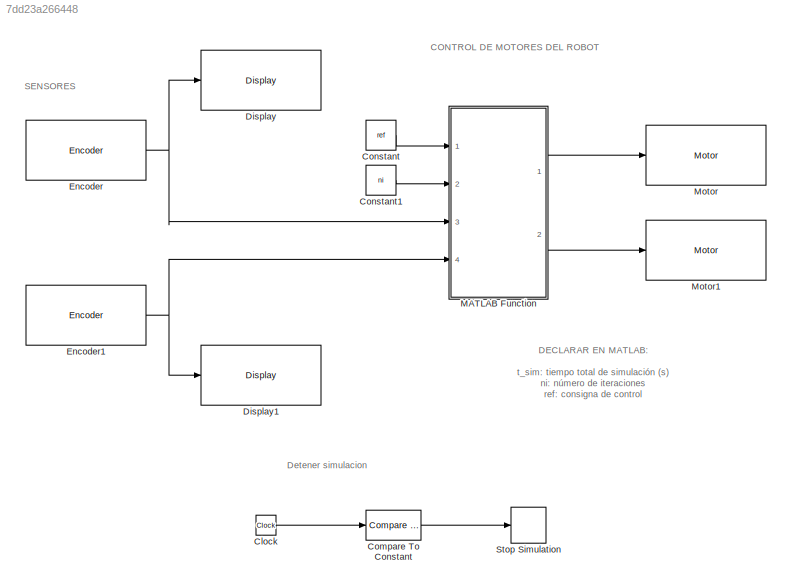
MODEL slx_7dd23a266448
KIND model
CONFIG AbsTol = auto
CONFIG EnableMultiTasking = on
CONFIG FixedStep = auto
CONFIG MaxStep = auto
CONFIG MinStep = auto
CONFIG RelTol = 1e-3
CONFIG SampleTimeConstraint = Unconstrained
CONFIG SolverName = FixedStepAuto
CONFIG StartTime = 0.0
CONFIG StopTime = 10.0
BLOCK [Clock] Clock
BLOCK [Reference] Compare To Constant  REF=simulink/Logic and Bit
Operations/Compare
To Constant
  Ports = [1, 1]
  SourceBlock = simulink/Logic and Bit\nOperations/Compare\nTo Constant
  SourceProductBaseCode = SL
  SourceType = Compare To Constant
BLOCK [Constant] Constant
  Value = ref
BLOCK [Constant] Constant1
  Value = ni
BLOCK [Reference] Display  REF=legoev3lib/Display
  Ports = [1]
  SourceBlock = legoev3lib/Display
  SourceProductBaseCode = LEGOEV3
  SourceType = LEGO MINDSTORMS EV3 Display
BLOCK [Reference] Display1  REF=legoev3lib/Display
  Ports = [1]
  SourceBlock = legoev3lib/Display
  SourceProductBaseCode = LEGOEV3
  SourceType = LEGO MINDSTORMS EV3 Display
BLOCK [Reference] Encoder  REF=legoev3lib/Encoder
  Ports = [0, 1]
  SourceBlock = legoev3lib/Encoder
  SourceProductBaseCode = LEGOEV3
  SourceType = LEGO MINDSTORMS EV3 Encoder
BLOCK [Reference] Encoder1  REF=legoev3lib/Encoder
  Ports = [0, 1]
  SourceBlock = legoev3lib/Encoder
  SourceProductBaseCode = LEGOEV3
  SourceType = LEGO MINDSTORMS EV3 Encoder
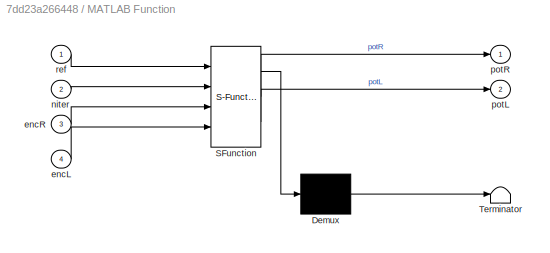
BLOCK [SubSystem] MATLAB Function
  ErrorFcn = Stateflow.Translate.translate
  PermitHierarchicalResolution = ExplicitOnly
  Ports = [4, 2]
  RequestExecContextInheritance = off
  SFBlockType = MATLAB Function
  TreatAsAtomicUnit = on
BLOCK [Demux] MATLAB Function/ Demux 
  Outputs = 1
  Ports = [1, 1]
BLOCK [S-Function] MATLAB Function/ SFunction 
  EnableBusSupport = off
  FunctionName = sf_sfun
  PortCounts = [4 3]
  Ports = [4, 3]
  SFcnIsStateOwnerBlock = off
  SFunctionDeploymentMode = off
  Tag = Stateflow S-Function 2
BLOCK [Terminator] MATLAB Function/ Terminator 
BLOCK [Inport] MATLAB Function/encL
  Port = 4
BLOCK [Inport] MATLAB Function/encR
  Port = 3
BLOCK [Inport] MATLAB Function/niter
  Port = 2
BLOCK [Outport] MATLAB Function/potL
  Port = 2
BLOCK [Outport] MATLAB Function/potR
BLOCK [Inport] MATLAB Function/ref
BLOCK [Reference] Motor  REF=legoev3lib/Motor
  Ports = [1]
  SourceBlock = legoev3lib/Motor
  SourceProductBaseCode = LEGOEV3
  SourceType = LEGO MINDSTORMS EV3 Motor
BLOCK [Reference] Motor1  REF=legoev3lib/Motor
  Ports = [1]
  SourceBlock = legoev3lib/Motor
  SourceProductBaseCode = LEGOEV3
  SourceType = LEGO MINDSTORMS EV3 Motor
BLOCK [Stop] Stop Simulation
ANNOTATION (root): Detener simulacion
ANNOTATION (root): CONTROL DE MOTORES DEL ROBOT
ANNOTATION (root): DECLARAR EN MATLAB: t_sim: tiempo total de simulación (s) ni: número de iteraciones ref: consigna de control
ANNOTATION (root): SENSORES
LINE Clock:1 -> Compare To Constant:1
LINE Compare To Constant:1 -> Stop Simulation:1
LINE Constant1:1 -> MATLAB Function:2
LINE Constant:1 -> MATLAB Function:1
NET Encoder1:1 -> Display1:1, MATLAB Function:4
NET Encoder:1 -> Display:1, MATLAB Function:3
LINE MATLAB Function:1 -> Motor:1
LINE MATLAB Function:2 -> Motor1:1
note: NET lines group one-source signal fan-out (src -> all destinations, sorted); 1:1 wires keep LINE
CHART MATLAB Function states=1 transitions=1
  STATE_LABEL 'eML_blk_kernel()'
  STATE_LABEL 'SCRIPT:\nfunction [potR,potL]    = fcn(ref,niter,encR,encL)\n    persistent iter;\n    \n    if (isempty(iter))\n        iter = 0;\n    end\n    \n    iter = iter +1;\n    \n    if(iter <= niter)\n        potR = int32(ref-encR);\n        potL = int32(ref-encL);\n        \n        if(potR>100)\n            potR=int32(100);\n        elseif(potR<-100)\n            potR = int32(-100);\n        end\n        \n        if(p...<+181ch>'
CHART  states=0 transitions=0
